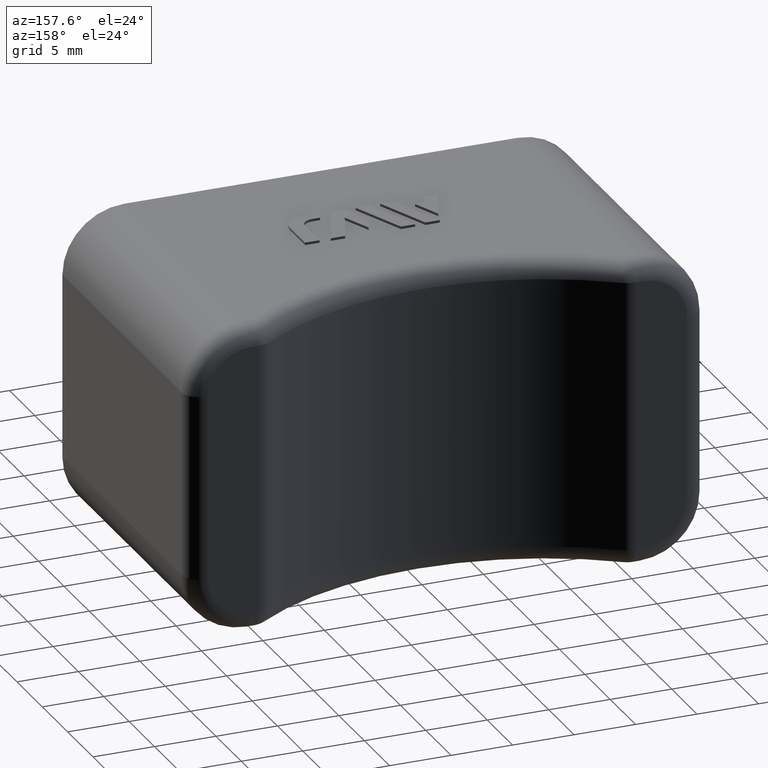
[diagram: clean part render]
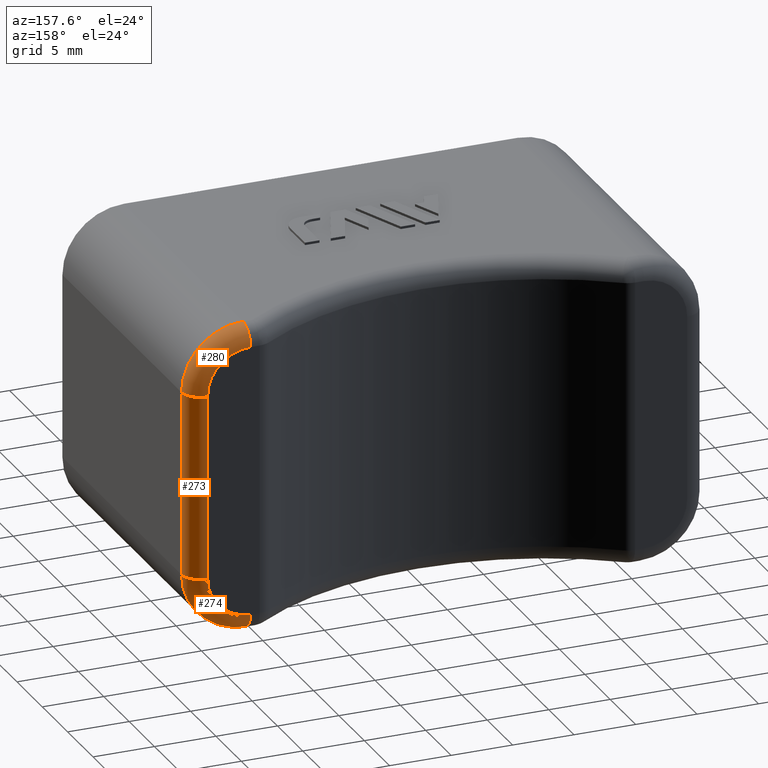
[diagram: same view with one multi-face feature highlighted, each face labeled with its STEP entity id]
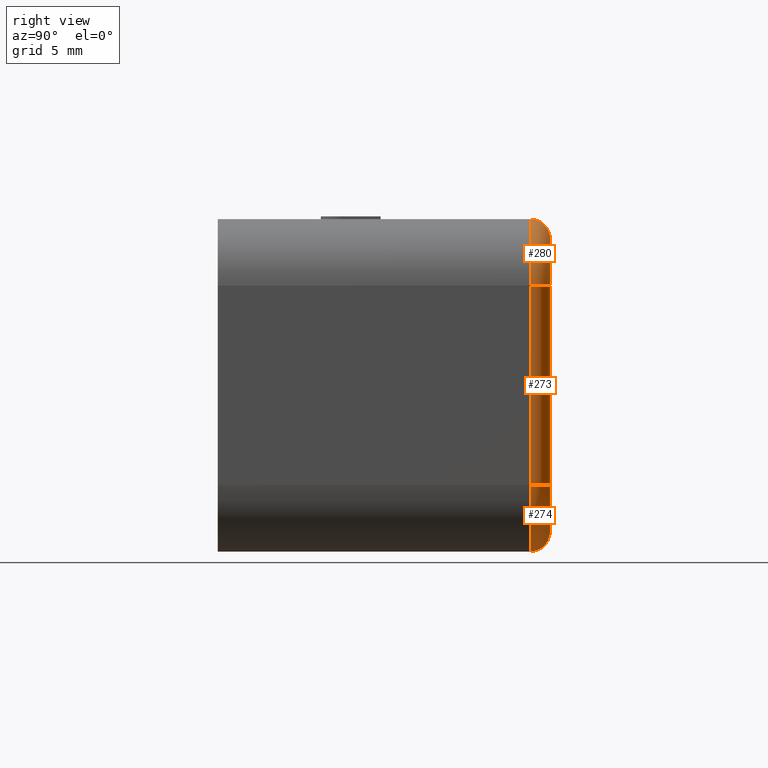
[diagram: same view with one multi-face feature highlighted, each face labeled with its STEP entity id]
A machine part, auxiliary view. The highlighted faces form ONE feature: a constant-radius fillet chain: 3 tangent blend faces with common blend radius 1.5 mm. The faces share edges in the B-rep.
A second angle (right view) of the same feature is appended — it is thin or edge-on in the first view.
Their STEP definitions:
[1] entity #274 (Torus):
#274 = ADVANCED_FACE( '', ( #764 ), #765, .T. );
#764 = FACE_OUTER_BOUND( '', #1310, .T. );
#765 = TOROIDAL_SURFACE( '', #1311, 3.50000000000000, 1.50000000000000 );
#1310 = EDGE_LOOP( '', ( #3041, #3042, #3043, #3044 ) );
#1311 = AXIS2_PLACEMENT_3D( '', #3045, #3046, #3047 );
#3041 = ORIENTED_EDGE( '', *, *, #4060, .T. );
#3042 = ORIENTED_EDGE( '', *, *, #3715, .F. );
#3043 = ORIENTED_EDGE( '', *, *, #4061, .F. );
#3044 = ORIENTED_EDGE( '', *, *, #4056, .F. );
#3045 = CARTESIAN_POINT( '', ( 16.0000000000000, 23.5000000000000, -7.50000000000000 ) );
#3046 = DIRECTION( '', ( 0.000000000000000, 1.00000000000000, 0.000000000000000 ) );
#3047 = DIRECTION( '', ( 0.000000000000000, 0.000000000000000, 1.00000000000000 ) );
#3715 = EDGE_CURVE( '', #4558, #4578, #4579, .F. );
#4056 = EDGE_CURVE( '', #5094, #5085, #5096, .T. );
#4060 = EDGE_CURVE( '', #5094, #4578, #5100, .T. );
#4061 = EDGE_CURVE( '', #5085, #4558, #5101, .T. );
#4558 = VERTEX_POINT( '', #5831 );
#4578 = VERTEX_POINT( '', #5856 );
#4579 = CIRCLE( '', #5857, 5.00000000000000 );
#5085 = VERTEX_POINT( '', #6610 );
#5094 = VERTEX_POINT( '', #6622 );
#5096 = CIRCLE( '', #6625, 3.50000000000000 );
#5100 = CIRCLE( '', #6630, 1.50000000000000 );
#5101 = CIRCLE( '', #6631, 1.50000000000000 );
#5831 = CARTESIAN_POINT( '', ( 16.0000000000000, 23.5000000000000, -12.5000000000000 ) );
#5856 = CARTESIAN_POINT( '', ( 21.0000000000000, 23.5000000000000, -7.50000000000000 ) );
#5857 = AXIS2_PLACEMENT_3D( '', #7035, #7036, #7037 );
#6610 = CARTESIAN_POINT( '', ( 16.0000000000000, 25.0000000000000, -11.0000000000000 ) );
#6622 = CARTESIAN_POINT( '', ( 19.5000000000000, 25.0000000000000, -7.50000000000000 ) );
#6625 = AXIS2_PLACEMENT_3D( '', #7556, #7557, #7558 );
#6630 = AXIS2_PLACEMENT_3D( '', #7566, #7567, #7568 );
#6631 = AXIS2_PLACEMENT_3D( '', #7569, #7570, #7571 );
#7035 = CARTESIAN_POINT( '', ( 16.0000000000000, 23.5000000000000, -7.50000000000000 ) );
#7036 = DIRECTION( '', ( 0.000000000000000, 1.00000000000000, 0.000000000000000 ) );
#7037 = DIRECTION( '', ( 0.000000000000000, 0.000000000000000, 1.00000000000000 ) );
#7556 = CARTESIAN_POINT( '', ( 16.0000000000000, 25.0000000000000, -7.50000000000000 ) );
#7557 = DIRECTION( '', ( 0.000000000000000, 1.00000000000000, 0.000000000000000 ) );
#7558 = DIRECTION( '', ( 0.000000000000000, 0.000000000000000, 1.00000000000000 ) );
#7566 = CARTESIAN_POINT( '', ( 19.5000000000000, 23.5000000000000, -7.50000000000000 ) );
#7567 = DIRECTION( '', ( 0.000000000000000, 0.000000000000000, -1.00000000000000 ) );
#7568 = DIRECTION( '', ( -1.00000000000000, 0.000000000000000, 0.000000000000000 ) );
#7569 = CARTESIAN_POINT( '', ( 16.0000000000000, 23.5000000000000, -11.0000000000000 ) );
#7570 = DIRECTION( '', ( -1.00000000000000, 0.000000000000000, 0.000000000000000 ) );
#7571 = DIRECTION( '', ( 0.000000000000000, 0.000000000000000, 1.00000000000000 ) );
[2] entity #273 (Cylinder):
#273 = ADVANCED_FACE( '', ( #762 ), #763, .T. );
#762 = FACE_OUTER_BOUND( '', #1308, .T. );
#763 = CYLINDRICAL_SURFACE( '', #1309, 1.50000000000000 );
#1308 = EDGE_LOOP( '', ( #3034, #3035, #3036, #3037 ) );
#1309 = AXIS2_PLACEMENT_3D( '', #3038, #3039, #3040 );
#3034 = ORIENTED_EDGE( '', *, *, #4059, .T. );
#3035 = ORIENTED_EDGE( '', *, *, #4057, .F. );
#3036 = ORIENTED_EDGE( '', *, *, #4060, .F. );
#3037 = ORIENTED_EDGE( '', *, *, #4055, .F. );
#3038 = CARTESIAN_POINT( '', ( 19.5000000000000, 23.5000000000000, -12.5000000000000 ) );
#3039 = DIRECTION( '', ( 0.000000000000000, 0.000000000000000, -1.00000000000000 ) );
#3040 = DIRECTION( '', ( 1.00000000000000, 0.000000000000000, 0.000000000000000 ) );
#4055 = EDGE_CURVE( '', #5092, #5094, #5095, .F. );
#4057 = EDGE_CURVE( '', #4578, #4582, #5097, .T. );
#4059 = EDGE_CURVE( '', #5092, #4582, #5099, .T. );
#4060 = EDGE_CURVE( '', #5094, #4578, #5100, .T. );
#4578 = VERTEX_POINT( '', #5856 );
#4582 = VERTEX_POINT( '', #5862 );
#5092 = VERTEX_POINT( '', #6620 );
#5094 = VERTEX_POINT( '', #6622 );
#5095 = LINE( '', #6623, #6624 );
#5097 = LINE( '', #6626, #6627 );
#5099 = CIRCLE( '', #6629, 1.50000000000000 );
#5100 = CIRCLE( '', #6630, 1.50000000000000 );
#5856 = CARTESIAN_POINT( '', ( 21.0000000000000, 23.5000000000000, -7.50000000000000 ) );
#5862 = CARTESIAN_POINT( '', ( 21.0000000000000, 23.5000000000000, 7.50000000000000 ) );
#6620 = CARTESIAN_POINT( '', ( 19.5000000000000, 25.0000000000000, 7.50000000000000 ) );
#6622 = CARTESIAN_POINT( '', ( 19.5000000000000, 25.0000000000000, -7.50000000000000 ) );
#6623 = CARTESIAN_POINT( '', ( 19.5000000000000, 25.0000000000000, -12.5000000000000 ) );
#6624 = VECTOR( '', #7555, 1000.00000000000 );
#6626 = CARTESIAN_POINT( '', ( 21.0000000000000, 23.5000000000000, -12.5000000000000 ) );
#6627 = VECTOR( '', #7559, 1000.00000000000 );
#6629 = AXIS2_PLACEMENT_3D( '', #7563, #7564, #7565 );
#6630 = AXIS2_PLACEMENT_3D( '', #7566, #7567, #7568 );
#7555 = DIRECTION( '', ( 0.000000000000000, 0.000000000000000, 1.00000000000000 ) );
#7559 = DIRECTION( '', ( 0.000000000000000, 0.000000000000000, 1.00000000000000 ) );
#7563 = CARTESIAN_POINT( '', ( 19.5000000000000, 23.5000000000000, 7.50000000000000 ) );
#7564 = DIRECTION( '', ( 0.000000000000000, 0.000000000000000, -1.00000000000000 ) );
#7565 = DIRECTION( '', ( -1.00000000000000, 0.000000000000000, 0.000000000000000 ) );
#7566 = CARTESIAN_POINT( '', ( 19.5000000000000, 23.5000000000000, -7.50000000000000 ) );
#7567 = DIRECTION( '', ( 0.000000000000000, 0.000000000000000, -1.00000000000000 ) );
#7568 = DIRECTION( '', ( -1.00000000000000, 0.000000000000000, 0.000000000000000 ) );
[3] entity #280 (Torus):
#280 = ADVANCED_FACE( '', ( #776 ), #777, .T. );
#776 = FACE_OUTER_BOUND( '', #1322, .T. );
#777 = TOROIDAL_SURFACE( '', #1323, 3.50000000000000, 1.50000000000000 );
#1322 = EDGE_LOOP( '', ( #3082, #3083, #3084, #3085 ) );
#1323 = AXIS2_PLACEMENT_3D( '', #3086, #3087, #3088 );
#3082 = ORIENTED_EDGE( '', *, *, #4068, .F. );
#3083 = ORIENTED_EDGE( '', *, *, #3719, .F. );
#3084 = ORIENTED_EDGE( '', *, *, #4059, .F. );
#3085 = ORIENTED_EDGE( '', *, *, #4054, .F. );
#3086 = CARTESIAN_POINT( '', ( 16.0000000000000, 23.5000000000000, 7.50000000000000 ) );
#3087 = DIRECTION( '', ( 0.000000000000000, 1.00000000000000, 0.000000000000000 ) );
#3088 = DIRECTION( '', ( 0.000000000000000, 0.000000000000000, 1.00000000000000 ) );
#3719 = EDGE_CURVE( '', #4582, #4510, #4584, .F. );
#4054 = EDGE_CURVE( '', #5090, #5092, #5093, .T. );
#4059 = EDGE_CURVE( '', #5092, #4582, #5099, .T. );
#4068 = EDGE_CURVE( '', #4510, #5090, #5108, .T. );
#4510 = VERTEX_POINT( '', #5762 );
#4582 = VERTEX_POINT( '', #5862 );
#4584 = CIRCLE( '', #5865, 5.00000000000000 );
#5090 = VERTEX_POINT( '', #6617 );
#5092 = VERTEX_POINT( '', #6620 );
#5093 = CIRCLE( '', #6621, 3.50000000000000 );
#5099 = CIRCLE( '', #6629, 1.50000000000000 );
#5108 = CIRCLE( '', #6638, 1.50000000000000 );
#5762 = CARTESIAN_POINT( '', ( 16.0000000000000, 23.5000000000000, 12.5000000000000 ) );
#5862 = CARTESIAN_POINT( '', ( 21.0000000000000, 23.5000000000000, 7.50000000000000 ) );
#5865 = AXIS2_PLACEMENT_3D( '', #7041, #7042, #7043 );
#6617 = CARTESIAN_POINT( '', ( 16.0000000000000, 25.0000000000000, 11.0000000000000 ) );
#6620 = CARTESIAN_POINT( '', ( 19.5000000000000, 25.0000000000000, 7.50000000000000 ) );
#6621 = AXIS2_PLACEMENT_3D( '', #7552, #7553, #7554 );
#6629 = AXIS2_PLACEMENT_3D( '', #7563, #7564, #7565 );
#6638 = AXIS2_PLACEMENT_3D( '', #7590, #7591, #7592 );
#7041 = CARTESIAN_POINT( '', ( 16.0000000000000, 23.5000000000000, 7.50000000000000 ) );
#7042 = DIRECTION( '', ( 0.000000000000000, 1.00000000000000, 0.000000000000000 ) );
#7043 = DIRECTION( '', ( 0.000000000000000, 0.000000000000000, 1.00000000000000 ) );
#7552 = CARTESIAN_POINT( '', ( 16.0000000000000, 25.0000000000000, 7.50000000000000 ) );
#7553 = DIRECTION( '', ( 0.000000000000000, 1.00000000000000, 0.000000000000000 ) );
#7554 = DIRECTION( '', ( 0.000000000000000, 0.000000000000000, 1.00000000000000 ) );
#7563 = CARTESIAN_POINT( '', ( 19.5000000000000, 23.5000000000000, 7.50000000000000 ) );
#7564 = DIRECTION( '', ( 0.000000000000000, 0.000000000000000, -1.00000000000000 ) );
#7565 = DIRECTION( '', ( -1.00000000000000, 0.000000000000000, 0.000000000000000 ) );
#7590 = CARTESIAN_POINT( '', ( 16.0000000000000, 23.5000000000000, 11.0000000000000 ) );
#7591 = DIRECTION( '', ( -1.00000000000000, 0.000000000000000, 0.000000000000000 ) );
#7592 = DIRECTION( '', ( 0.000000000000000, 0.000000000000000, 1.00000000000000 ) );